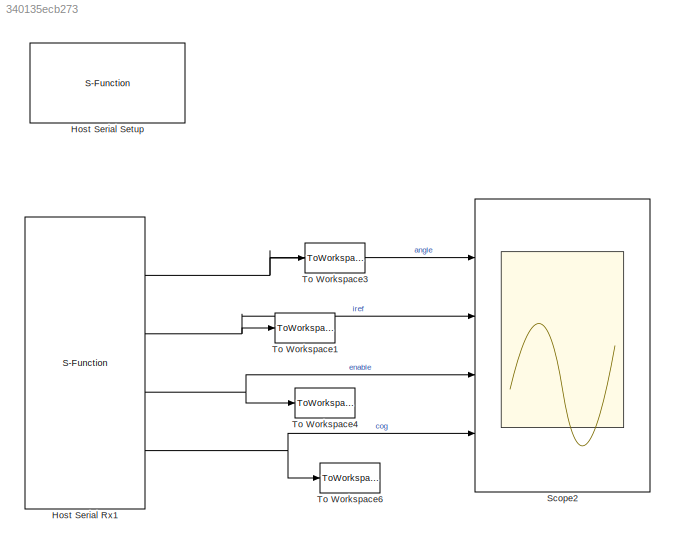
MODEL slx_340135ecb273
KIND model
CONFIG AbsTol = auto
CONFIG EnableMultiTasking = off
CONFIG FixedStep = Ts.base
CONFIG MaxStep = auto
CONFIG MinStep = auto
CONFIG RelTol = 1e-3
CONFIG SampleTimeConstraint = Unconstrained
CONFIG Solver = FixedStepAuto
CONFIG SolverName = FixedStepAuto
CONFIG StartTime = 0.0
CONFIG StopTime = inf
BLOCK [S-Function] Host Serial Rx1
  EnableBusSupport = off
  FunctionName = amg_usbconverter_n_serial
  Parameters = configuration,port,transfer,baudrate,stopbit,inputtype,outputtype,binheaderarray,binterminatorarray,asciiheader,asciiterminator,bindatalength,packetmode,timeout,sampletime,initialvalues,blockid
  Ports = [0, 4]
  Priority = 1
  SFcnIsStateOwnerBlock = off
  SFunctionDeploymentMode = off
BLOCK [S-Function] Host Serial Setup
  EnableBusSupport = off
  FunctionName = amg_usbconverter_n_serial
  Parameters = configuration,port,transfer,baudrate,stopbit,inputtype,outputtype,binheaderarray,binterminatorarray,asciiheader,asciiterminator,bindatalength,packetmode,timeout,sampletime,sampletimestr,blockid
  Ports = []
  Priority = 1
  SFcnIsStateOwnerBlock = off
  SFunctionDeploymentMode = off
BLOCK [Scope] Scope2
  NumInputPorts = 4
  Ports = [4]
  ScopeSpecificationString = Simulink.scopes.TimeScopeBlockCfg('CurrentConfiguration', extmgr.ConfigurationSet(extmgr.Configuration('Core','General UI',true),extmgr.Configuration('Core','Source UI',true),extmgr.Configuration('Sources','WiredSimulink',true,'DataLoggingMaxPoints','20/Ts.base'),extmgr.Configuration('Visuals','Time Domain',true,'SerializedDisplays',{struct('MinYLimReal','-44.50889','MaxYLimReal','5.77174','YLabel...<+3442ch>
BLOCK [ToWorkspace] To Workspace1
  FixptAsFi = on
  MaxDataPoints = inf
  Ports = [1]
  SampleTime = -1
  Save2DSignal = 3-D array (concatenate along third dimension)
  SaveFormat = Timeseries
  VariableName = az_imu3
BLOCK [ToWorkspace] To Workspace3
  FixptAsFi = on
  MaxDataPoints = inf
  Ports = [1]
  SampleTime = -1
  Save2DSignal = 3-D array (concatenate along third dimension)
  SaveFormat = Timeseries
  VariableName = az_imu1
BLOCK [ToWorkspace] To Workspace4
  FixptAsFi = on
  MaxDataPoints = inf
  Ports = [1]
  SampleTime = -1
  Save2DSignal = 3-D array (concatenate along third dimension)
  SaveFormat = Timeseries
  VariableName = wx_imu1
BLOCK [ToWorkspace] To Workspace6
  FixptAsFi = on
  MaxDataPoints = inf
  Ports = [1]
  SampleTime = -1
  Save2DSignal = 3-D array (concatenate along third dimension)
  SaveFormat = Timeseries
  VariableName = wx_imu3
NET Host Serial Rx1:1 -> Scope2:1, To Workspace3:1
NET Host Serial Rx1:2 -> Scope2:2, To Workspace1:1
NET Host Serial Rx1:3 -> Scope2:3, To Workspace4:1
NET Host Serial Rx1:4 -> Scope2:4, To Workspace6:1
note: NET lines group one-source signal fan-out (src -> all destinations, sorted); 1:1 wires keep LINE
